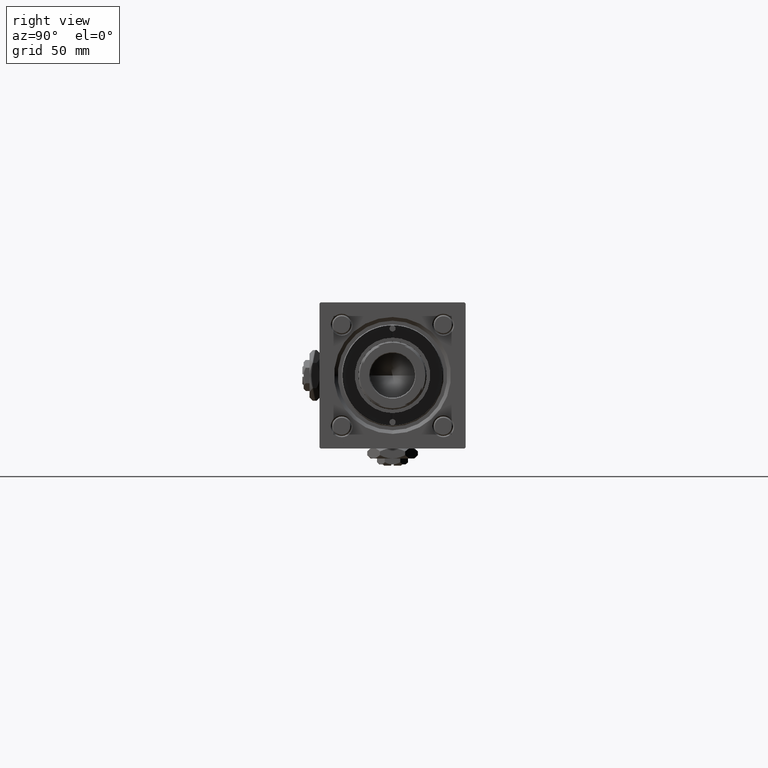
[diagram: clean part render]
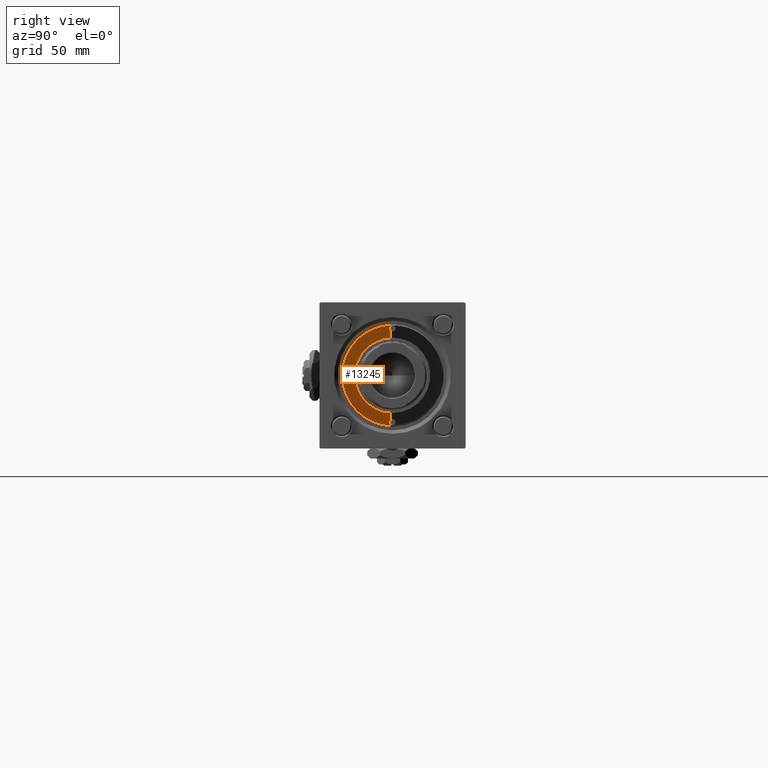
[diagram: same view with one face highlighted and labeled with its STEP entity id]
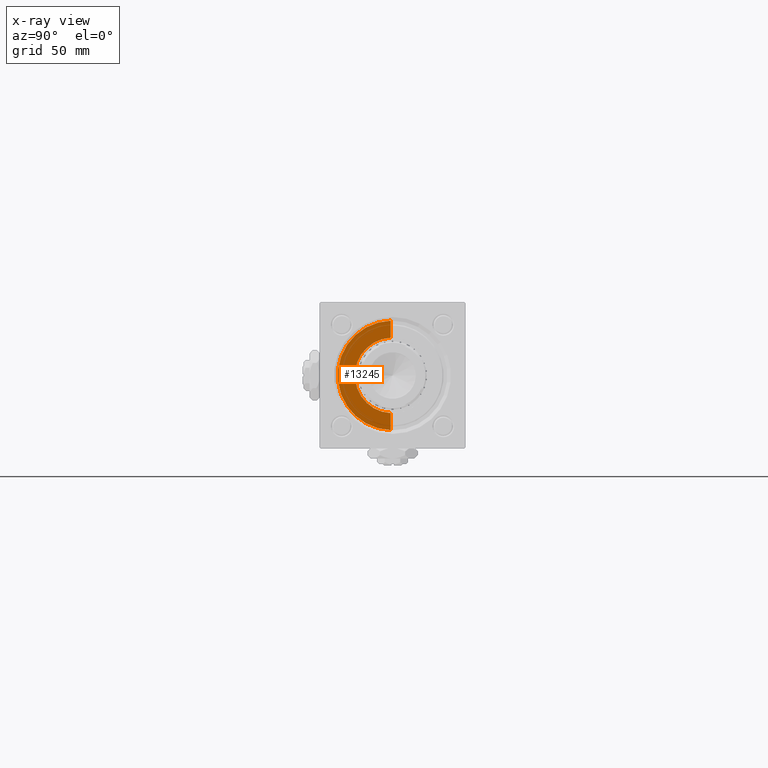
[diagram: x-ray of the same camera — body ghosted, the highlighted face saturated]
A machine part, right view. The second image highlights one B-rep face of the part: STEP entity #13245.
The next image is the same camera in x-ray: the body ghosted, the highlighted face saturated — about 6% of this face is hidden behind the body in this view.
In plain terms, the highlighted planar face has unit normal (1, 0, 0).
Its self-contained STEP definition (entity closure, byte-faithful):
#1606 = DIRECTION ( 'NONE',  ( -0.000000000000000000, -0.000000000000000000, 1.000000000000000000 ) ) ;
#1622 = FACE_OUTER_BOUND ( 'NONE', #2866, .T. ) ;
#2207 = PLANE ( 'NONE',  #19506 ) ;
#2866 = EDGE_LOOP ( 'NONE', ( #43577, #56590, #50964, #58646 ) ) ;
#3908 = CARTESIAN_POINT ( 'NONE',  ( 209.2999999999999829, -0.7063285354566983809, 30.00100000000002254 ) ) ;
#4896 = CARTESIAN_POINT ( 'NONE',  ( 209.2999999999999829, -0.7063285354567054863, 22.48891060056043756 ) ) ;
#8516 = CARTESIAN_POINT ( 'NONE',  ( 209.2999999999999829, 0.000000000000000000, 0.000000000000000000 ) ) ;
#10869 = VERTEX_POINT ( 'NONE', #23366 ) ;
#12222 = DIRECTION ( 'NONE',  ( 0.000000000000000000, 0.000000000000000000, -1.000000000000000000 ) ) ;
#13245 = ADVANCED_FACE ( 'NONE', ( #1622 ), #2207, .T. ) ;
#16222 = CARTESIAN_POINT ( 'NONE',  ( 209.2999999999999829, 0.000000000000000000, 0.000000000000000000 ) ) ;
#18639 = DIRECTION ( 'NONE',  ( 1.000000000000000000, 0.000000000000000000, 0.000000000000000000 ) ) ;
#18853 = AXIS2_PLACEMENT_3D ( 'NONE', #8516, #18639, #27598 ) ;
#19506 = AXIS2_PLACEMENT_3D ( 'NONE', #16222, #51482, #38629 ) ;
#22525 = LINE ( 'NONE', #28758, #55239 ) ;
#22985 = EDGE_CURVE ( 'NONE', #38107, #23543, #44604, .T. ) ;
#23366 = CARTESIAN_POINT ( 'NONE',  ( 209.2999999999999829, -0.7063285354566972707, -15.48389808801386991 ) ) ;
#23543 = VERTEX_POINT ( 'NONE', #50755 ) ;
#24660 = VECTOR ( 'NONE', #46507, 1000.000000000000000 ) ;
#26101 = EDGE_CURVE ( 'NONE', #10869, #23543, #50392, .T. ) ;
#27598 = DIRECTION ( 'NONE',  ( 0.000000000000000000, 0.000000000000000000, -1.000000000000000000 ) ) ;
#28758 = CARTESIAN_POINT ( 'NONE',  ( 209.2999999999999829, -0.7063285354567054863, 52.79999999999999716 ) ) ;
#31349 = CIRCLE ( 'NONE', #37064, 15.50000000000000000 ) ;
#37064 = AXIS2_PLACEMENT_3D ( 'NONE', #38524, #48354, #12222 ) ;
#38107 = VERTEX_POINT ( 'NONE', #4896 ) ;
#38524 = CARTESIAN_POINT ( 'NONE',  ( 209.2999999999999829, 0.000000000000000000, 0.000000000000000000 ) ) ;
#38629 = DIRECTION ( 'NONE',  ( 0.000000000000000000, 0.000000000000000000, -1.000000000000000000 ) ) ;
#43577 = ORIENTED_EDGE ( 'NONE', *, *, #26101, .F. ) ;
#44604 = CIRCLE ( 'NONE', #18853, 22.50000000000000355 ) ;
#46507 = DIRECTION ( 'NONE',  ( -0.000000000000000000, -0.000000000000000000, -1.000000000000000000 ) ) ;
#48354 = DIRECTION ( 'NONE',  ( 1.000000000000000000, 0.000000000000000000, 0.000000000000000000 ) ) ;
#49735 = VERTEX_POINT ( 'NONE', #56803 ) ;
#50134 = EDGE_CURVE ( 'NONE', #49735, #10869, #31349, .T. ) ;
#50392 = LINE ( 'NONE', #3908, #24660 ) ;
#50755 = CARTESIAN_POINT ( 'NONE',  ( 209.2999999999999829, -0.7063285354566984919, -22.48891060056043401 ) ) ;
#50964 = ORIENTED_EDGE ( 'NONE', *, *, #51778, .T. ) ;
#51482 = DIRECTION ( 'NONE',  ( 1.000000000000000000, 0.000000000000000000, 0.000000000000000000 ) ) ;
#51778 = EDGE_CURVE ( 'NONE', #49735, #38107, #22525, .T. ) ;
#55239 = VECTOR ( 'NONE', #1606, 1000.000000000000000 ) ;
#56590 = ORIENTED_EDGE ( 'NONE', *, *, #50134, .F. ) ;
#56803 = CARTESIAN_POINT ( 'NONE',  ( 209.2999999999999829, -0.7063285354567054863, 15.48389808801386991 ) ) ;
#58646 = ORIENTED_EDGE ( 'NONE', *, *, #22985, .T. ) ;